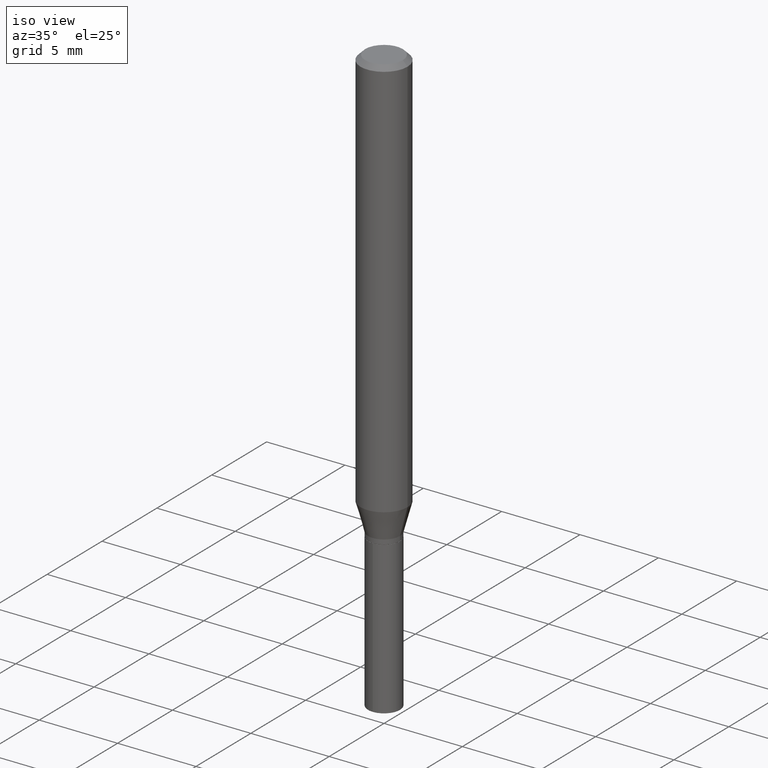
[diagram: clean part render]
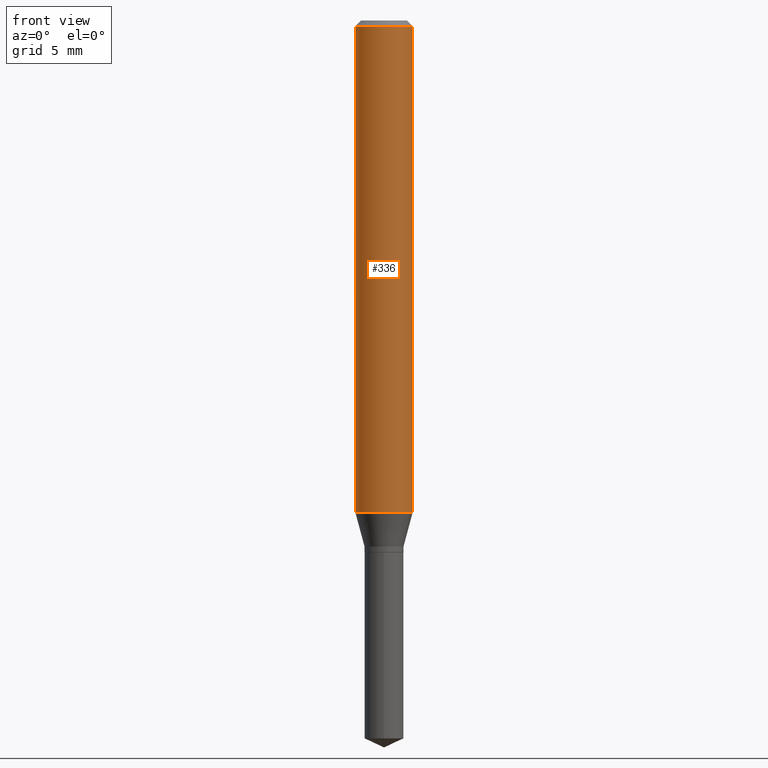
[diagram: tour spotlight — one face highlighted and labeled with its STEP entity id]
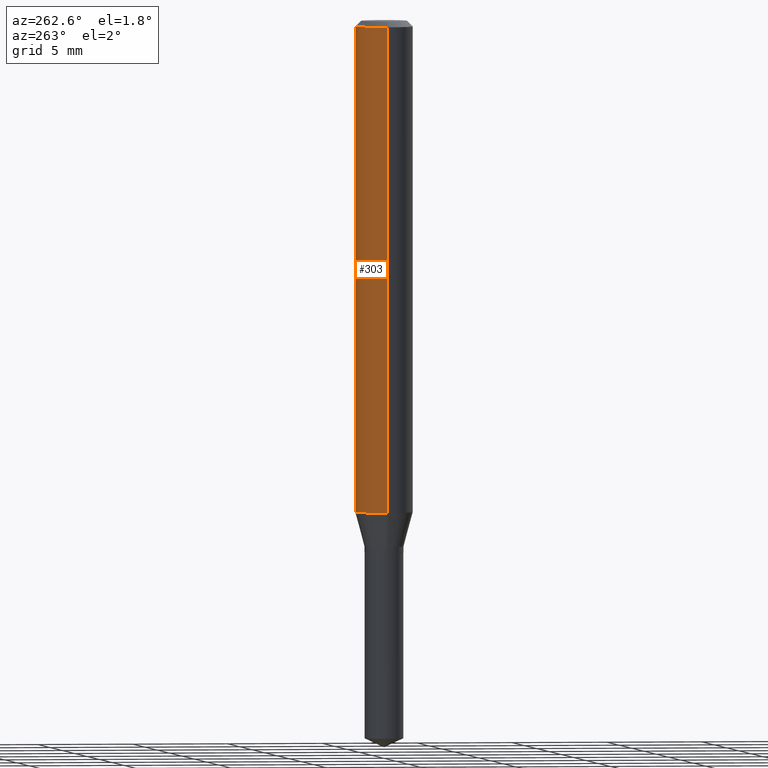
[diagram: tour spotlight — one face highlighted and labeled with its STEP entity id]
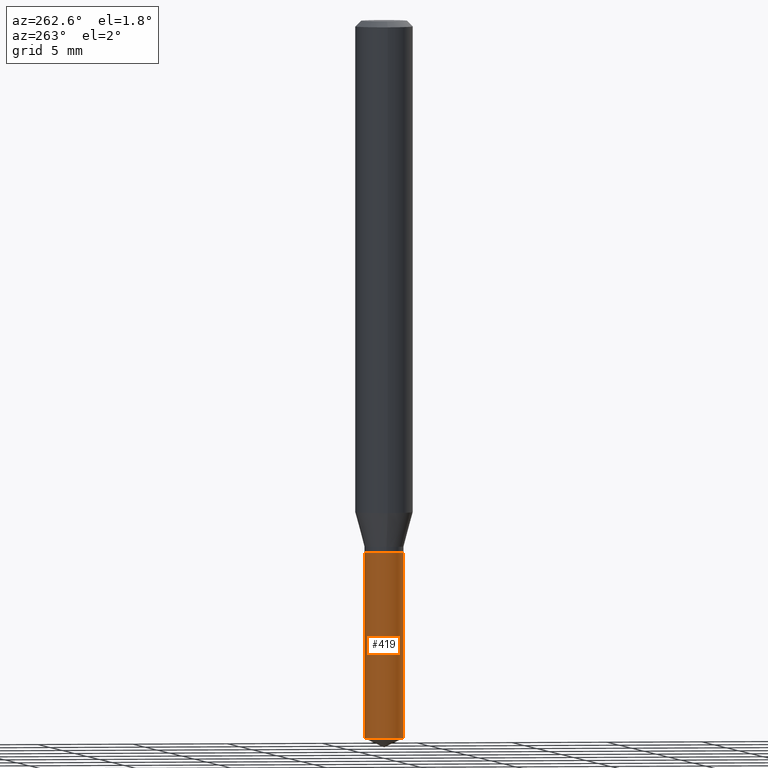
[diagram: tour spotlight — one face highlighted and labeled with its STEP entity id]
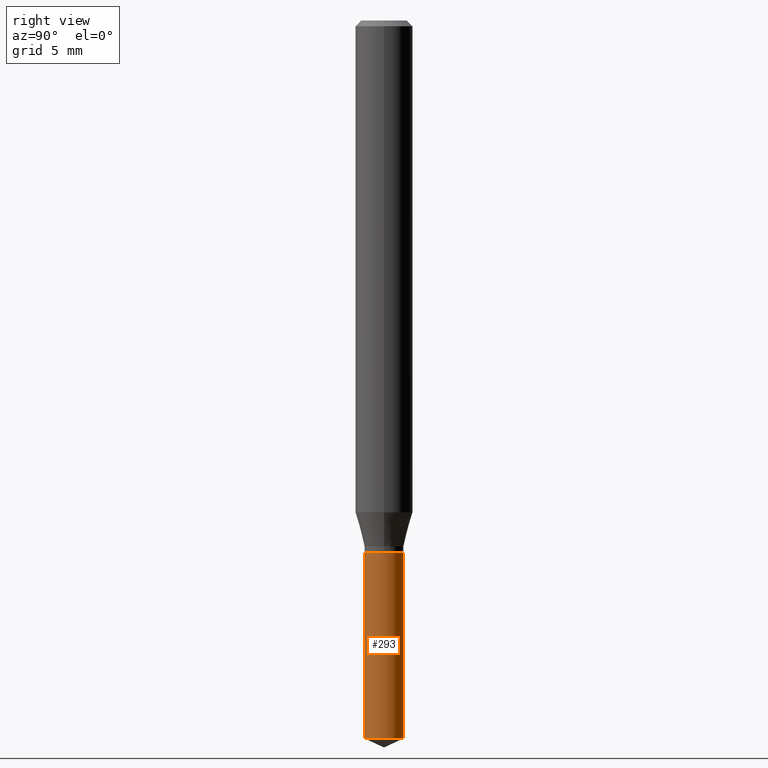
[diagram: tour spotlight — one face highlighted and labeled with its STEP entity id]
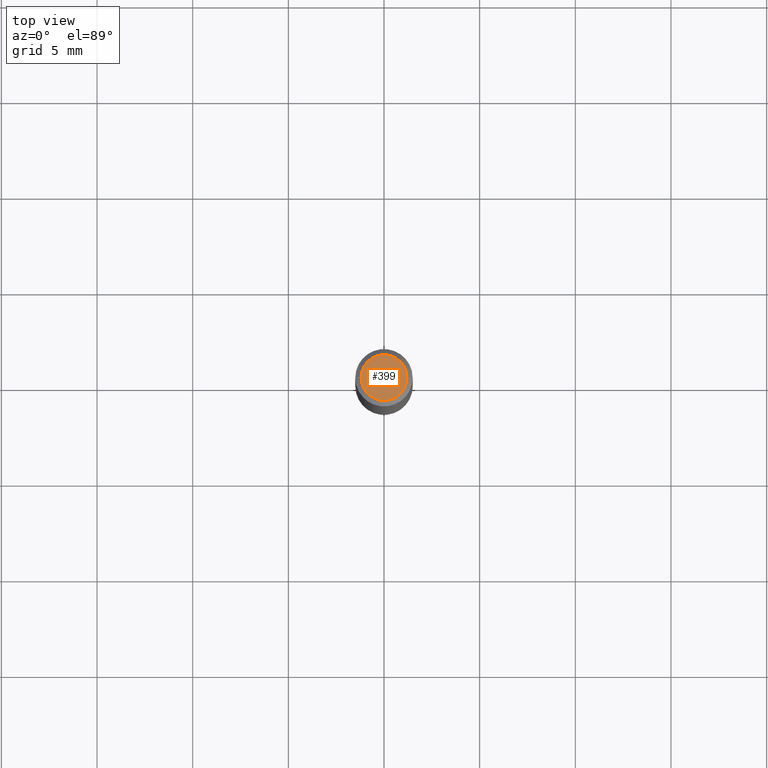
[diagram: tour spotlight — one face highlighted and labeled with its STEP entity id]
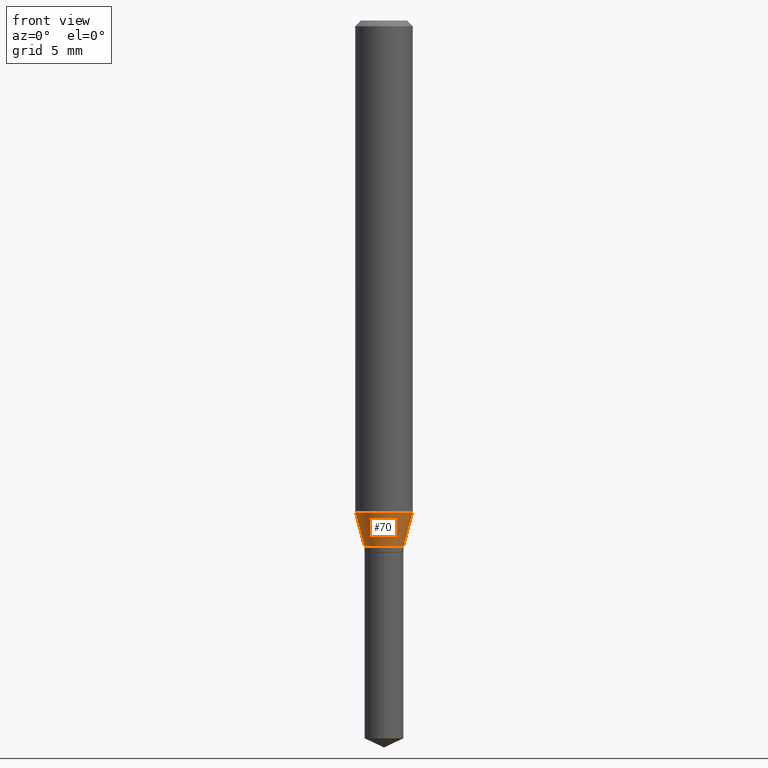
[diagram: tour spotlight — one face highlighted and labeled with its STEP entity id]
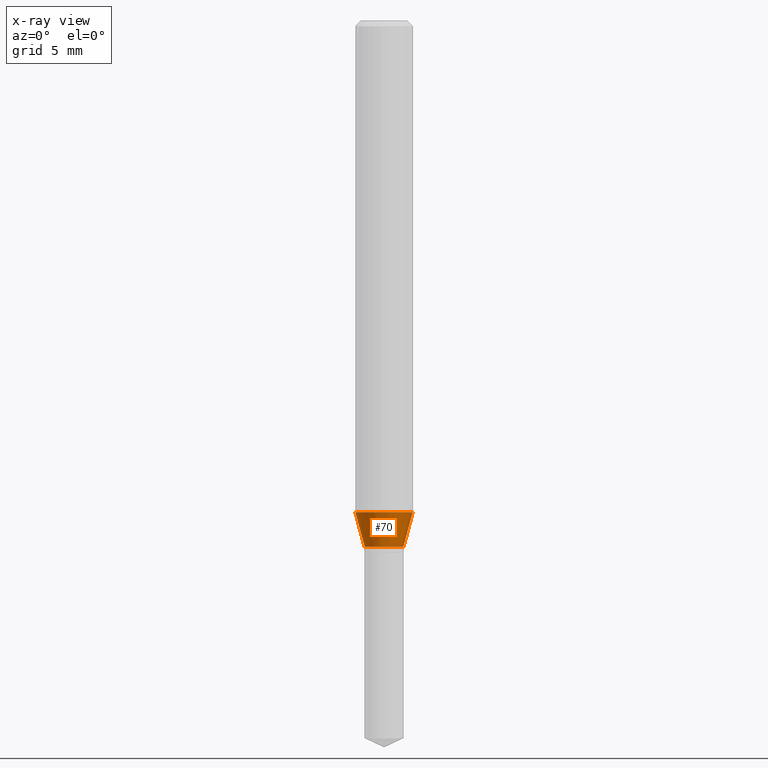
[diagram: x-ray of the same camera — body ghosted, this tour face saturated]
A machine part: a face-by-face anatomy tour. The part has 17 B-rep faces; the first image is the clean iso view, then the 6 largest visible faces are spotlighted one at a time (largest first), each with its STEP entity span.

Face 1 — front view, entity #336. In plain terms, the highlighted cylindrical surface (edge-blend (fillet) strip) has radius 1.4999 mm, axis along (-0, 0, 1).
Definition (entity closure, byte-faithful):
#19 = ORIENTED_EDGE ( 'NONE', *, *, #450, .F. ) ;
#28 = DIRECTION ( 'NONE',  ( -2.445468806185136597E-29, 3.491481338843145583E-15, 1.000000000000000000 ) ) ;
#34 = DIRECTION ( 'NONE',  ( 1.000000000000000000, -6.982962677686265133E-15, 0.000000000000000000 ) ) ;
#56 = LINE ( 'NONE', #210, #73 ) ;
#66 = CYLINDRICAL_SURFACE ( 'NONE', #280, 0.05905000000000006771 ) ;
#67 = CARTESIAN_POINT ( 'NONE',  ( 2.474726981251563190E-29, -3.533254258618144854E-15, -1.011964239736947935 ) ) ;
#73 = VECTOR ( 'NONE', #217, 39.37007874015748143 ) ;
#78 = DIRECTION ( 'NONE',  ( 1.000000000000000000, -6.982962677686267499E-15, 0.000000000000000000 ) ) ;
#90 = VERTEX_POINT ( 'NONE', #231 ) ;
#94 = VECTOR ( 'NONE', #453, 39.37007874015748143 ) ;
#110 = VERTEX_POINT ( 'NONE', #180 ) ;
#140 = VERTEX_POINT ( 'NONE', #218 ) ;
#180 = CARTESIAN_POINT ( 'NONE',  ( -0.05905000000000000526, -1.367668841148601207E-15, -0.01181000000000007912 ) ) ;
#187 = CARTESIAN_POINT ( 'NONE',  ( 0.000000000000000000, 0.000000000000000000, 0.000000000000000000 ) ) ;
#210 = CARTESIAN_POINT ( 'NONE',  ( 0.05905000000000006771, -4.123439461173745257E-16, 2.879382386107503723E-30 ) ) ;
#217 = DIRECTION ( 'NONE',  ( -2.445468806185136877E-29, 3.491481338843145188E-15, 1.000000000000000000 ) ) ;
#218 = CARTESIAN_POINT ( 'NONE',  ( 0.05905000000000000526, -4.535783407291119586E-16, -0.01181000000000007912 ) ) ;
#226 = DIRECTION ( 'NONE',  ( 1.000000000000000000, -6.982962677686266711E-15, 4.876176775795936353E-29 ) ) ;
#228 = FACE_OUTER_BOUND ( 'NONE', #471, .T. ) ;
#231 = CARTESIAN_POINT ( 'NONE',  ( -0.05905000000000013016, -3.113678773151804967E-15, -1.011964239736947935 ) ) ;
#247 = EDGE_CURVE ( 'NONE', #272, #140, #56, .T. ) ;
#257 = AXIS2_PLACEMENT_3D ( 'NONE', #67, #294, #34 ) ;
#270 = CIRCLE ( 'NONE', #257, 0.05905000000000013016 ) ;
#272 = VERTEX_POINT ( 'NONE', #301 ) ;
#277 = ORIENTED_EDGE ( 'NONE', *, *, #247, .T. ) ;
#280 = AXIS2_PLACEMENT_3D ( 'NONE', #187, #28, #226 ) ;
#294 = DIRECTION ( 'NONE',  ( -2.445468806185136597E-29, 3.491481338843145583E-15, 1.000000000000000000 ) ) ;
#295 = ORIENTED_EDGE ( 'NONE', *, *, #367, .T. ) ;
#301 = CARTESIAN_POINT ( 'NONE',  ( 0.05905000000000013016, -3.945598204735519774E-15, -1.011964239736947935 ) ) ;
#302 = CARTESIAN_POINT ( 'NONE',  ( 2.888098660104665956E-31, -4.123439461173782728E-17, -0.01181000000000007912 ) ) ;
#336 = ADVANCED_FACE ( 'NONE', ( #228 ), #66, .T. ) ;
#362 = AXIS2_PLACEMENT_3D ( 'NONE', #302, #413, #78 ) ;
#367 = EDGE_CURVE ( 'NONE', #90, #272, #270, .T. ) ;
#392 = ORIENTED_EDGE ( 'NONE', *, *, #479, .F. ) ;
#413 = DIRECTION ( 'NONE',  ( -2.445468806185136597E-29, 3.491481338843145583E-15, 1.000000000000000000 ) ) ;
#447 = CIRCLE ( 'NONE', #362, 0.05905000000000000526 ) ;
#450 = EDGE_CURVE ( 'NONE', #110, #140, #447, .T. ) ;
#451 = CARTESIAN_POINT ( 'NONE',  ( -0.05905000000000006771, 4.195754854663396409E-16, -2.904631170795525045E-30 ) ) ;
#453 = DIRECTION ( 'NONE',  ( -2.445468806185136877E-29, 3.491481338843145188E-15, 1.000000000000000000 ) ) ;
#461 = LINE ( 'NONE', #451, #94 ) ;
#471 = EDGE_LOOP ( 'NONE', ( #392, #295, #277, #19 ) ) ;
#479 = EDGE_CURVE ( 'NONE', #90, #110, #461, .T. ) ;

Face 2 — auxiliary view, entity #303. In plain terms, the highlighted cylindrical surface (edge-blend (fillet) strip) has radius 1.4999 mm, axis along (-0, 0, 1).
Definition (entity closure, byte-faithful):
#14 = DIRECTION ( 'NONE',  ( -2.445468806185136597E-29, 3.491481338843145583E-15, 1.000000000000000000 ) ) ;
#41 = EDGE_CURVE ( 'NONE', #140, #110, #279, .T. ) ;
#56 = LINE ( 'NONE', #210, #73 ) ;
#63 = AXIS2_PLACEMENT_3D ( 'NONE', #341, #14, #160 ) ;
#73 = VECTOR ( 'NONE', #217, 39.37007874015748143 ) ;
#90 = VERTEX_POINT ( 'NONE', #231 ) ;
#94 = VECTOR ( 'NONE', #453, 39.37007874015748143 ) ;
#110 = VERTEX_POINT ( 'NONE', #180 ) ;
#140 = VERTEX_POINT ( 'NONE', #218 ) ;
#145 = EDGE_CURVE ( 'NONE', #272, #90, #155, .T. ) ;
#155 = CIRCLE ( 'NONE', #195, 0.05905000000000013016 ) ;
#160 = DIRECTION ( 'NONE',  ( 1.000000000000000000, -6.982962677686267499E-15, 0.000000000000000000 ) ) ;
#180 = CARTESIAN_POINT ( 'NONE',  ( -0.05905000000000000526, -1.367668841148601207E-15, -0.01181000000000007912 ) ) ;
#195 = AXIS2_PLACEMENT_3D ( 'NONE', #402, #250, #429 ) ;
#208 = EDGE_LOOP ( 'NONE', ( #420, #446, #387, #432 ) ) ;
#210 = CARTESIAN_POINT ( 'NONE',  ( 0.05905000000000006771, -4.123439461173745257E-16, 2.879382386107503723E-30 ) ) ;
#217 = DIRECTION ( 'NONE',  ( -2.445468806185136877E-29, 3.491481338843145188E-15, 1.000000000000000000 ) ) ;
#218 = CARTESIAN_POINT ( 'NONE',  ( 0.05905000000000000526, -4.535783407291119586E-16, -0.01181000000000007912 ) ) ;
#231 = CARTESIAN_POINT ( 'NONE',  ( -0.05905000000000013016, -3.113678773151804967E-15, -1.011964239736947935 ) ) ;
#247 = EDGE_CURVE ( 'NONE', #272, #140, #56, .T. ) ;
#250 = DIRECTION ( 'NONE',  ( -2.445468806185136597E-29, 3.491481338843145583E-15, 1.000000000000000000 ) ) ;
#256 = DIRECTION ( 'NONE',  ( 1.000000000000000000, -6.982962677686266711E-15, 4.876176775795936353E-29 ) ) ;
#272 = VERTEX_POINT ( 'NONE', #301 ) ;
#279 = CIRCLE ( 'NONE', #63, 0.05905000000000000526 ) ;
#290 = FACE_OUTER_BOUND ( 'NONE', #208, .T. ) ;
#298 = DIRECTION ( 'NONE',  ( -2.445468806185136597E-29, 3.491481338843145583E-15, 1.000000000000000000 ) ) ;
#301 = CARTESIAN_POINT ( 'NONE',  ( 0.05905000000000013016, -3.945598204735519774E-15, -1.011964239736947935 ) ) ;
#303 = ADVANCED_FACE ( 'NONE', ( #290 ), #442, .T. ) ;
#341 = CARTESIAN_POINT ( 'NONE',  ( 2.888098660104665956E-31, -4.123439461173782728E-17, -0.01181000000000007912 ) ) ;
#343 = AXIS2_PLACEMENT_3D ( 'NONE', #409, #298, #256 ) ;
#387 = ORIENTED_EDGE ( 'NONE', *, *, #41, .F. ) ;
#402 = CARTESIAN_POINT ( 'NONE',  ( 2.474726981251563190E-29, -3.533254258618144854E-15, -1.011964239736947935 ) ) ;
#409 = CARTESIAN_POINT ( 'NONE',  ( 0.000000000000000000, 0.000000000000000000, 0.000000000000000000 ) ) ;
#420 = ORIENTED_EDGE ( 'NONE', *, *, #145, .T. ) ;
#429 = DIRECTION ( 'NONE',  ( 1.000000000000000000, -6.982962677686265133E-15, 0.000000000000000000 ) ) ;
#432 = ORIENTED_EDGE ( 'NONE', *, *, #247, .F. ) ;
#442 = CYLINDRICAL_SURFACE ( 'NONE', #343, 0.05905000000000006771 ) ;
#446 = ORIENTED_EDGE ( 'NONE', *, *, #479, .T. ) ;
#451 = CARTESIAN_POINT ( 'NONE',  ( -0.05905000000000006771, 4.195754854663396409E-16, -2.904631170795525045E-30 ) ) ;
#453 = DIRECTION ( 'NONE',  ( -2.445468806185136877E-29, 3.491481338843145188E-15, 1.000000000000000000 ) ) ;
#461 = LINE ( 'NONE', #451, #94 ) ;
#479 = EDGE_CURVE ( 'NONE', #90, #110, #461, .T. ) ;

Face 3 — auxiliary view, entity #419. In plain terms, the highlighted cylindrical surface (edge-blend (fillet) strip) has radius 1.0198 mm, axis along (-0, 0, 1).
Definition (entity closure, byte-faithful):
#2 = CARTESIAN_POINT ( 'NONE',  ( 2.676565608369631794E-29, -3.821426325363822773E-15, -1.094499999999999806 ) ) ;
#4 = DIRECTION ( 'NONE',  ( -2.445458899330790108E-29, 3.491495526022433205E-15, 1.000000000000000000 ) ) ;
#8 = ORIENTED_EDGE ( 'NONE', *, *, #35, .T. ) ;
#12 = ORIENTED_EDGE ( 'NONE', *, *, #158, .F. ) ;
#27 = LINE ( 'NONE', #97, #216 ) ;
#35 = EDGE_CURVE ( 'NONE', #459, #268, #305, .T. ) ;
#46 = CARTESIAN_POINT ( 'NONE',  ( -2.803659515090768085E-16, -0.04015000000000382152, -1.094499999999999806 ) ) ;
#68 = AXIS2_PLACEMENT_3D ( 'NONE', #490, #339, #261 ) ;
#77 = DIRECTION ( 'NONE',  ( -6.982962677686266711E-15, -1.000000000000000000, 3.402052295970439836E-15 ) ) ;
#80 = CYLINDRICAL_SURFACE ( 'NONE', #233, 0.04014999999999999819 ) ;
#84 = EDGE_CURVE ( 'NONE', #215, #268, #352, .T. ) ;
#92 = CIRCLE ( 'NONE', #68, 0.04014999999999999819 ) ;
#97 = CARTESIAN_POINT ( 'NONE',  ( 2.852829084077068851E-16, 0.04014999999999617486, -1.094500000000000028 ) ) ;
#109 = VECTOR ( 'NONE', #119, 39.37007874015748143 ) ;
#119 = DIRECTION ( 'NONE',  ( -2.445458899330790108E-29, 3.491495526022433599E-15, 1.000000000000000000 ) ) ;
#126 = ORIENTED_EDGE ( 'NONE', *, *, #84, .F. ) ;
#153 = DIRECTION ( 'NONE',  ( -2.445458899330790108E-29, 3.491495526022433205E-15, 1.000000000000000000 ) ) ;
#158 = EDGE_CURVE ( 'NONE', #395, #215, #27, .T. ) ;
#159 = DIRECTION ( 'NONE',  ( -6.982962677686266711E-15, -1.000000000000000000, 3.402052295970439836E-15 ) ) ;
#181 = DIRECTION ( 'NONE',  ( -2.445458899330790108E-29, 3.491495526022433599E-15, 1.000000000000000000 ) ) ;
#215 = VERTEX_POINT ( 'NONE', #390 ) ;
#216 = VECTOR ( 'NONE', #181, 39.37007874015748143 ) ;
#233 = AXIS2_PLACEMENT_3D ( 'NONE', #2, #153, #159 ) ;
#234 = FACE_OUTER_BOUND ( 'NONE', #322, .T. ) ;
#261 = DIRECTION ( 'NONE',  ( -6.982962677686266711E-15, -1.000000000000000000, 6.804104591940879672E-15 ) ) ;
#268 = VERTEX_POINT ( 'NONE', #411 ) ;
#305 = LINE ( 'NONE', #46, #109 ) ;
#309 = CARTESIAN_POINT ( 'NONE',  ( -2.803659515090673914E-16, -0.04015000000000516073, -1.477377747525076446 ) ) ;
#322 = EDGE_LOOP ( 'NONE', ( #12, #422, #8, #126 ) ) ;
#339 = DIRECTION ( 'NONE',  ( -2.445458899330790108E-29, 3.491495526022433205E-15, 1.000000000000000000 ) ) ;
#352 = CIRCLE ( 'NONE', #452, 0.04014999999999999819 ) ;
#379 = CARTESIAN_POINT ( 'NONE',  ( 2.676565608369631794E-29, -3.821426325363822773E-15, -1.094499999999999806 ) ) ;
#390 = CARTESIAN_POINT ( 'NONE',  ( 2.852829084077163515E-16, 0.04014999999999617486, -1.094500000000000028 ) ) ;
#395 = VERTEX_POINT ( 'NONE', #445 ) ;
#411 = CARTESIAN_POINT ( 'NONE',  ( -2.803659515090768085E-16, -0.04015000000000382152, -1.094499999999999806 ) ) ;
#412 = EDGE_CURVE ( 'NONE', #395, #459, #92, .T. ) ;
#419 = ADVANCED_FACE ( 'NONE', ( #234 ), #80, .T. ) ;
#422 = ORIENTED_EDGE ( 'NONE', *, *, #412, .T. ) ;
#445 = CARTESIAN_POINT ( 'NONE',  ( 2.852829084077163515E-16, 0.04014999999999484259, -1.477377747525077112 ) ) ;
#452 = AXIS2_PLACEMENT_3D ( 'NONE', #379, #4, #77 ) ;
#459 = VERTEX_POINT ( 'NONE', #309 ) ;
#490 = CARTESIAN_POINT ( 'NONE',  ( 3.612877403410558045E-29, -5.158242267861175196E-15, -1.477377747525076890 ) ) ;

Face 4 — right view, entity #293. In plain terms, the highlighted cylindrical surface (edge-blend (fillet) strip) has radius 1.0198 mm, axis along (-0, 0, 1).
Definition (entity closure, byte-faithful):
#13 = AXIS2_PLACEMENT_3D ( 'NONE', #235, #193, #118 ) ;
#27 = LINE ( 'NONE', #97, #216 ) ;
#29 = EDGE_CURVE ( 'NONE', #459, #395, #189, .T. ) ;
#35 = EDGE_CURVE ( 'NONE', #459, #268, #305, .T. ) ;
#38 = CARTESIAN_POINT ( 'NONE',  ( 2.676565608369631794E-29, -3.821426325363822773E-15, -1.094499999999999806 ) ) ;
#46 = CARTESIAN_POINT ( 'NONE',  ( -2.803659515090768085E-16, -0.04015000000000382152, -1.094499999999999806 ) ) ;
#47 = ORIENTED_EDGE ( 'NONE', *, *, #35, .F. ) ;
#60 = DIRECTION ( 'NONE',  ( -2.445458899330790108E-29, 3.491495526022433205E-15, 1.000000000000000000 ) ) ;
#71 = CYLINDRICAL_SURFACE ( 'NONE', #375, 0.04014999999999999819 ) ;
#97 = CARTESIAN_POINT ( 'NONE',  ( 2.852829084077068851E-16, 0.04014999999999617486, -1.094500000000000028 ) ) ;
#109 = VECTOR ( 'NONE', #119, 39.37007874015748143 ) ;
#118 = DIRECTION ( 'NONE',  ( -6.982962677686266711E-15, -1.000000000000000000, 6.804104591940879672E-15 ) ) ;
#119 = DIRECTION ( 'NONE',  ( -2.445458899330790108E-29, 3.491495526022433599E-15, 1.000000000000000000 ) ) ;
#141 = DIRECTION ( 'NONE',  ( -2.445458899330790108E-29, 3.491495526022433205E-15, 1.000000000000000000 ) ) ;
#152 = EDGE_CURVE ( 'NONE', #268, #215, #183, .T. ) ;
#158 = EDGE_CURVE ( 'NONE', #395, #215, #27, .T. ) ;
#169 = ORIENTED_EDGE ( 'NONE', *, *, #152, .F. ) ;
#181 = DIRECTION ( 'NONE',  ( -2.445458899330790108E-29, 3.491495526022433599E-15, 1.000000000000000000 ) ) ;
#183 = CIRCLE ( 'NONE', #300, 0.04014999999999999819 ) ;
#189 = CIRCLE ( 'NONE', #13, 0.04014999999999999819 ) ;
#193 = DIRECTION ( 'NONE',  ( -2.445458899330790108E-29, 3.491495526022433205E-15, 1.000000000000000000 ) ) ;
#211 = EDGE_LOOP ( 'NONE', ( #241, #325, #169, #47 ) ) ;
#215 = VERTEX_POINT ( 'NONE', #390 ) ;
#216 = VECTOR ( 'NONE', #181, 39.37007874015748143 ) ;
#235 = CARTESIAN_POINT ( 'NONE',  ( 3.612877403410558045E-29, -5.158242267861175196E-15, -1.477377747525076890 ) ) ;
#241 = ORIENTED_EDGE ( 'NONE', *, *, #29, .T. ) ;
#258 = DIRECTION ( 'NONE',  ( -6.982962677686266711E-15, -1.000000000000000000, 3.402052295970439836E-15 ) ) ;
#268 = VERTEX_POINT ( 'NONE', #411 ) ;
#293 = ADVANCED_FACE ( 'NONE', ( #444 ), #71, .T. ) ;
#300 = AXIS2_PLACEMENT_3D ( 'NONE', #359, #60, #368 ) ;
#305 = LINE ( 'NONE', #46, #109 ) ;
#309 = CARTESIAN_POINT ( 'NONE',  ( -2.803659515090673914E-16, -0.04015000000000516073, -1.477377747525076446 ) ) ;
#325 = ORIENTED_EDGE ( 'NONE', *, *, #158, .T. ) ;
#359 = CARTESIAN_POINT ( 'NONE',  ( 2.676565608369631794E-29, -3.821426325363822773E-15, -1.094499999999999806 ) ) ;
#368 = DIRECTION ( 'NONE',  ( -6.982962677686266711E-15, -1.000000000000000000, 3.402052295970439836E-15 ) ) ;
#375 = AXIS2_PLACEMENT_3D ( 'NONE', #38, #141, #258 ) ;
#390 = CARTESIAN_POINT ( 'NONE',  ( 2.852829084077163515E-16, 0.04014999999999617486, -1.094500000000000028 ) ) ;
#395 = VERTEX_POINT ( 'NONE', #445 ) ;
#411 = CARTESIAN_POINT ( 'NONE',  ( -2.803659515090768085E-16, -0.04015000000000382152, -1.094499999999999806 ) ) ;
#444 = FACE_OUTER_BOUND ( 'NONE', #211, .T. ) ;
#445 = CARTESIAN_POINT ( 'NONE',  ( 2.852829084077163515E-16, 0.04014999999999484259, -1.477377747525077112 ) ) ;
#459 = VERTEX_POINT ( 'NONE', #309 ) ;

Face 5 — top view, entity #399. In plain terms, the highlighted planar face has unit normal (0, -0, -1).
Definition (entity closure, byte-faithful):
#50 = VERTEX_POINT ( 'NONE', #310 ) ;
#69 = PLANE ( 'NONE',  #333 ) ;
#99 = ORIENTED_EDGE ( 'NONE', *, *, #129, .T. ) ;
#103 = CARTESIAN_POINT ( 'NONE',  ( 8.265746106709734507E-48, -1.180129479067563789E-33, -3.380025165646692144E-19 ) ) ;
#108 = FACE_OUTER_BOUND ( 'NONE', #330, .T. ) ;
#117 = DIRECTION ( 'NONE',  ( -2.445468806185136597E-29, 3.491481338843145583E-15, 1.000000000000000000 ) ) ;
#129 = EDGE_CURVE ( 'NONE', #50, #154, #353, .T. ) ;
#154 = VERTEX_POINT ( 'NONE', #239 ) ;
#166 = AXIS2_PLACEMENT_3D ( 'NONE', #423, #117, #377 ) ;
#239 = CARTESIAN_POINT ( 'NONE',  ( 0.04724000000000000421, -3.852183633974369838E-16, -3.380025165621689721E-19 ) ) ;
#310 = CARTESIAN_POINT ( 'NONE',  ( -0.04724000000000000421, 3.504923541997677355E-16, -3.380025165670481712E-19 ) ) ;
#314 = AXIS2_PLACEMENT_3D ( 'NONE', #103, #394, #365 ) ;
#330 = EDGE_LOOP ( 'NONE', ( #99, #363 ) ) ;
#333 = AXIS2_PLACEMENT_3D ( 'NONE', #338, #337, #489 ) ;
#337 = DIRECTION ( 'NONE',  ( 2.438088387897960049E-29, -3.491481338843145188E-15, -1.000000000000000000 ) ) ;
#338 = CARTESIAN_POINT ( 'NONE',  ( 4.132873053354867254E-48, -5.900647395337818946E-34, -1.690012582823346072E-19 ) ) ;
#353 = CIRCLE ( 'NONE', #314, 0.04724000000000000421 ) ;
#363 = ORIENTED_EDGE ( 'NONE', *, *, #470, .T. ) ;
#365 = DIRECTION ( 'NONE',  ( 1.000000000000000000, -6.982962677686266711E-15, 4.876185090822587894E-29 ) ) ;
#377 = DIRECTION ( 'NONE',  ( 1.000000000000000000, -6.982962677686266711E-15, 4.876185090822587894E-29 ) ) ;
#394 = DIRECTION ( 'NONE',  ( -2.445468806185136597E-29, 3.491481338843145583E-15, 1.000000000000000000 ) ) ;
#399 = ADVANCED_FACE ( 'NONE', ( #108 ), #69, .F. ) ;
#421 = CIRCLE ( 'NONE', #166, 0.04724000000000000421 ) ;
#423 = CARTESIAN_POINT ( 'NONE',  ( 8.265746106709734507E-48, -1.180129479067563789E-33, -3.380025165646692144E-19 ) ) ;
#470 = EDGE_CURVE ( 'NONE', #154, #50, #421, .T. ) ;
#489 = DIRECTION ( 'NONE',  ( -1.000000000000000000, 6.982962677686265922E-15, -4.876176775795935793E-29 ) ) ;

Face 6 — front view, entity #70. An x-ray twin of the same camera follows (body ghosted, this face saturated) — the face is partly hidden behind the body. In plain terms, the highlighted conical surface has half-angle 15 deg.
Definition (entity closure, byte-faithful):
#3 = LINE ( 'NONE', #151, #81 ) ;
#6 = DIRECTION ( 'NONE',  ( -0.2588190451025214611, 5.211531920934550253E-15, 0.9659258262890679791 ) ) ;
#34 = DIRECTION ( 'NONE',  ( 1.000000000000000000, -6.982962677686265133E-15, 0.000000000000000000 ) ) ;
#54 = ORIENTED_EDGE ( 'NONE', *, *, #367, .F. ) ;
#62 = CARTESIAN_POINT ( 'NONE',  ( 0.04014999999999999819, -4.059894500806808838E-15, -1.082500000000000018 ) ) ;
#67 = CARTESIAN_POINT ( 'NONE',  ( 2.474726981251563190E-29, -3.533254258618144854E-15, -1.011964239736947935 ) ) ;
#70 = ADVANCED_FACE ( 'NONE', ( #83 ), #142, .T. ) ;
#72 = DIRECTION ( 'NONE',  ( 1.000000000000000000, -6.982962677686261189E-15, 0.000000000000000000 ) ) ;
#75 = DIRECTION ( 'NONE',  ( 1.000000000000000000, -6.982962677686261189E-15, 0.000000000000000000 ) ) ;
#81 = VECTOR ( 'NONE', #6, 39.37007874015748143 ) ;
#83 = FACE_OUTER_BOUND ( 'NONE', #425, .T. ) ;
#90 = VERTEX_POINT ( 'NONE', #231 ) ;
#114 = ORIENTED_EDGE ( 'NONE', *, *, #443, .F. ) ;
#134 = CIRCLE ( 'NONE', #263, 0.04014999999999999819 ) ;
#142 = CONICAL_SURFACE ( 'NONE', #240, 0.04014999999999999819, 0.2617993877991501850 ) ;
#151 = CARTESIAN_POINT ( 'NONE',  ( -0.04014999999999999819, -3.494245640890025145E-15, -1.082500000000000018 ) ) ;
#170 = CARTESIAN_POINT ( 'NONE',  ( 0.04014999999999999819, -4.059894500806808838E-15, -1.082500000000000018 ) ) ;
#185 = EDGE_CURVE ( 'NONE', #237, #272, #327, .T. ) ;
#203 = ORIENTED_EDGE ( 'NONE', *, *, #264, .T. ) ;
#231 = CARTESIAN_POINT ( 'NONE',  ( -0.05905000000000013016, -3.113678773151804967E-15, -1.011964239736947935 ) ) ;
#237 = VERTEX_POINT ( 'NONE', #62 ) ;
#240 = AXIS2_PLACEMENT_3D ( 'NONE', #415, #266, #75 ) ;
#257 = AXIS2_PLACEMENT_3D ( 'NONE', #67, #294, #34 ) ;
#263 = AXIS2_PLACEMENT_3D ( 'NONE', #396, #404, #72 ) ;
#264 = EDGE_CURVE ( 'NONE', #357, #237, #134, .T. ) ;
#266 = DIRECTION ( 'NONE',  ( -2.445468806185136597E-29, 3.491481338843145583E-15, 1.000000000000000000 ) ) ;
#270 = CIRCLE ( 'NONE', #257, 0.05905000000000013016 ) ;
#271 = ORIENTED_EDGE ( 'NONE', *, *, #185, .T. ) ;
#272 = VERTEX_POINT ( 'NONE', #301 ) ;
#289 = VECTOR ( 'NONE', #320, 39.37007874015748143 ) ;
#294 = DIRECTION ( 'NONE',  ( -2.445468806185136597E-29, 3.491481338843145583E-15, 1.000000000000000000 ) ) ;
#301 = CARTESIAN_POINT ( 'NONE',  ( 0.05905000000000013016, -3.945598204735519774E-15, -1.011964239736947935 ) ) ;
#320 = DIRECTION ( 'NONE',  ( 0.2588190451025214611, 1.565188264969620982E-15, 0.9659258262890679791 ) ) ;
#327 = LINE ( 'NONE', #170, #289 ) ;
#357 = VERTEX_POINT ( 'NONE', #374 ) ;
#367 = EDGE_CURVE ( 'NONE', #90, #272, #270, .T. ) ;
#374 = CARTESIAN_POINT ( 'NONE',  ( -0.04014999999999999819, -3.514321658588372830E-15, -1.082500000000000018 ) ) ;
#396 = CARTESIAN_POINT ( 'NONE',  ( 2.647219982695410164E-29, -3.779528549297705110E-15, -1.082500000000000018 ) ) ;
#404 = DIRECTION ( 'NONE',  ( -2.445468806185136597E-29, 3.491481338843145583E-15, 1.000000000000000000 ) ) ;
#415 = CARTESIAN_POINT ( 'NONE',  ( 2.647219982695410164E-29, -3.779528549297705110E-15, -1.082500000000000018 ) ) ;
#425 = EDGE_LOOP ( 'NONE', ( #114, #203, #271, #54 ) ) ;
#443 = EDGE_CURVE ( 'NONE', #357, #90, #3, .T. ) ;